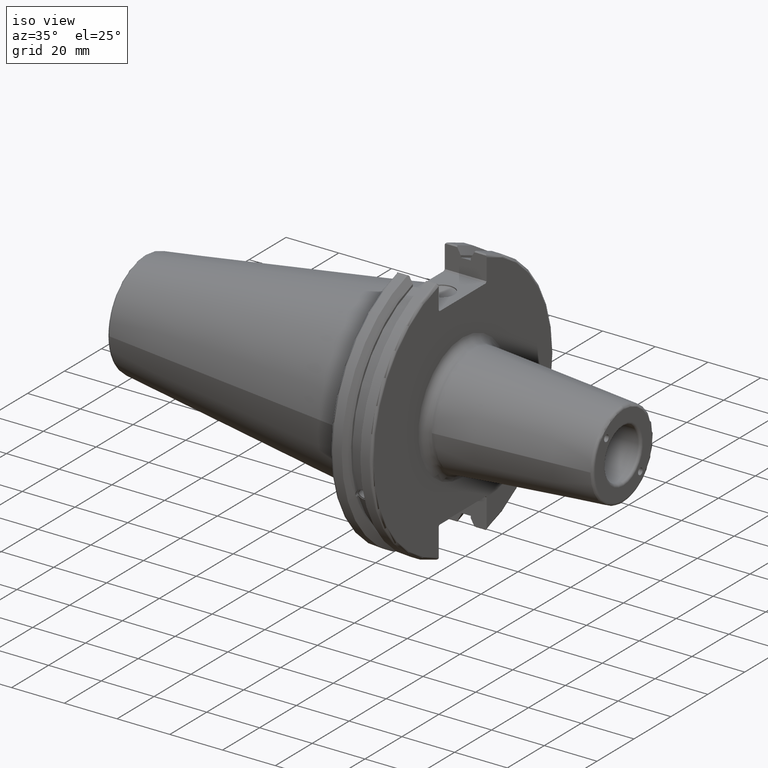
[diagram: clean part render]
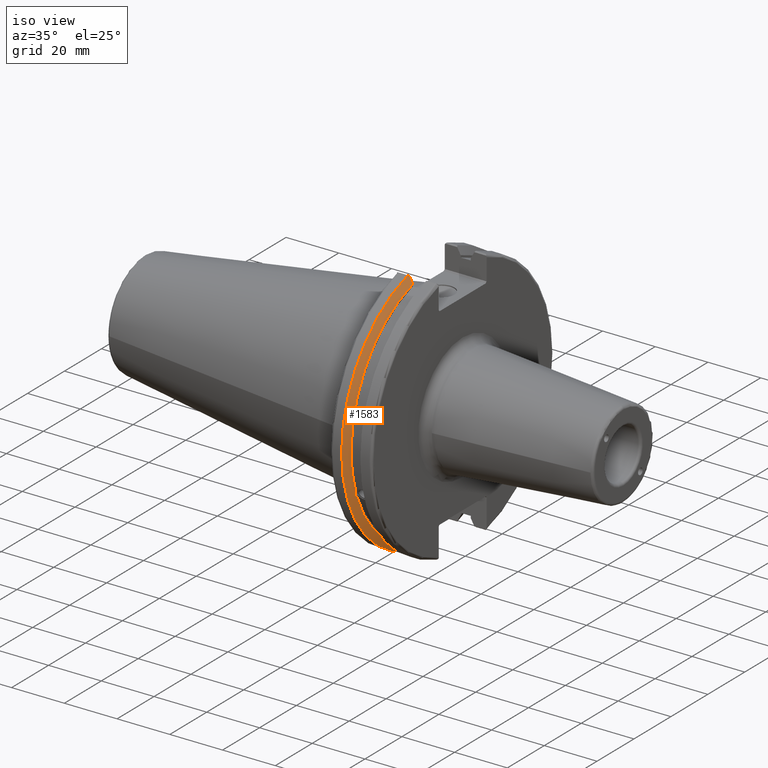
[diagram: same view with one face highlighted and labeled with its STEP entity id]
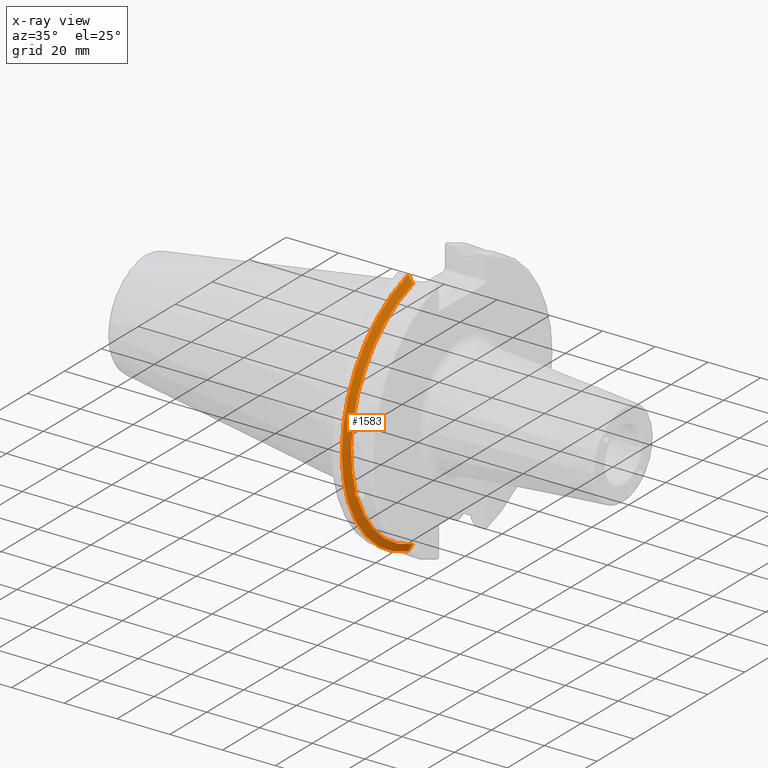
[diagram: x-ray of the same camera — body ghosted, the highlighted face saturated]
A machine part, iso view. The second image highlights one B-rep face of the part: STEP entity #1583.
The next image is the same camera in x-ray: the body ghosted, the highlighted face saturated — about 0% of this face is hidden behind the body in this view.
In plain terms, the highlighted conical surface has half-angle 60 deg.
Its self-contained STEP definition (entity closure, byte-faithful):
#25=(
BOUNDED_CURVE()
B_SPLINE_CURVE(2,(#2993,#2994,#2995),.UNSPECIFIED.,.F.,.F.)
B_SPLINE_CURVE_WITH_KNOTS((3,3),(0.,0.275823910674601),.UNSPECIFIED.)
CURVE()
GEOMETRIC_REPRESENTATION_ITEM()
RATIONAL_B_SPLINE_CURVE((1.,1.00038235573593,1.00012873636487))
REPRESENTATION_ITEM('')
);
#26=(
BOUNDED_CURVE()
B_SPLINE_CURVE(2,(#3005,#3006,#3007),.UNSPECIFIED.,.F.,.F.)
B_SPLINE_CURVE_WITH_KNOTS((3,3),(0.0558332664507492,0.331657177124507),
 .UNSPECIFIED.)
CURVE()
GEOMETRIC_REPRESENTATION_ITEM()
RATIONAL_B_SPLINE_CURVE((1.00012873636807,1.00038235574544,1.))
REPRESENTATION_ITEM('')
);
#27=(
BOUNDED_CURVE()
B_SPLINE_CURVE(2,(#3040,#3041,#3042),.UNSPECIFIED.,.F.,.F.)
B_SPLINE_CURVE_WITH_KNOTS((3,3),(0.,0.0648240472897372),.UNSPECIFIED.)
CURVE()
GEOMETRIC_REPRESENTATION_ITEM()
RATIONAL_B_SPLINE_CURVE((1.,1.00011477674836,1.00019140645948))
REPRESENTATION_ITEM('')
);
#28=(
BOUNDED_CURVE()
B_SPLINE_CURVE(2,(#3048,#3049,#3050),.UNSPECIFIED.,.F.,.F.)
B_SPLINE_CURVE_WITH_KNOTS((3,3),(0.325260944932348,0.390084992222201),
 .UNSPECIFIED.)
CURVE()
GEOMETRIC_REPRESENTATION_ITEM()
RATIONAL_B_SPLINE_CURVE((1.00019140645916,1.00011477674817,1.))
REPRESENTATION_ITEM('')
);
#41=B_SPLINE_CURVE_WITH_KNOTS('',3,(#2529,#2530,#2531,#2532,#2533,#2534,
#2535,#2536,#2537,#2538,#2539,#2540,#2541,#2542),.UNSPECIFIED.,.F.,.F.,
(4,2,2,2,2,2,4),(0.426712868358719,0.441644498666906,0.48031331322313,0.518982127779354,
0.557650942335578,0.596319756891801,0.611251387199988),.UNSPECIFIED.);
#81=CONICAL_SURFACE('',#1775,47.8172386482472,1.0471975511966);
#238=FACE_OUTER_BOUND('',#350,.T.);
#350=EDGE_LOOP('',(#1448,#1449,#1450,#1451,#1452,#1453,#1454,#1455));
#389=CIRCLE('',#1678,46.4219772964944);
#413=CIRCLE('',#1729,49.2125);
#429=CIRCLE('',#1776,46.4219772964944);
#672=VERTEX_POINT('',#2526);
#673=VERTEX_POINT('',#2528);
#690=VERTEX_POINT('',#2619);
#750=VERTEX_POINT('',#2990);
#751=VERTEX_POINT('',#2992);
#754=VERTEX_POINT('',#3004);
#758=VERTEX_POINT('',#3038);
#759=VERTEX_POINT('',#3044);
#841=EDGE_CURVE('',#673,#672,#41,.T.);
#864=EDGE_CURVE('',#673,#690,#389,.T.);
#946=EDGE_CURVE('',#751,#750,#25,.T.);
#952=EDGE_CURVE('',#754,#690,#26,.T.);
#960=EDGE_CURVE('',#758,#750,#27,.T.);
#962=EDGE_CURVE('',#758,#759,#413,.T.);
#963=EDGE_CURVE('',#754,#759,#28,.T.);
#1005=EDGE_CURVE('',#751,#672,#429,.T.);
#1448=ORIENTED_EDGE('',*,*,#841,.T.);
#1449=ORIENTED_EDGE('',*,*,#1005,.F.);
#1450=ORIENTED_EDGE('',*,*,#946,.T.);
#1451=ORIENTED_EDGE('',*,*,#960,.F.);
#1452=ORIENTED_EDGE('',*,*,#962,.T.);
#1453=ORIENTED_EDGE('',*,*,#963,.F.);
#1454=ORIENTED_EDGE('',*,*,#952,.T.);
#1455=ORIENTED_EDGE('',*,*,#864,.F.);
#1583=ADVANCED_FACE('',(#238),#81,.T.);
#1678=AXIS2_PLACEMENT_3D('',#2620,#1951,#1952);
#1729=AXIS2_PLACEMENT_3D('',#3046,#2095,#2096);
#1775=AXIS2_PLACEMENT_3D('',#3162,#2208,#2209);
#1776=AXIS2_PLACEMENT_3D('',#3163,#2210,#2211);
#1951=DIRECTION('center_axis',(1.,0.,0.));
#1952=DIRECTION('ref_axis',(0.,0.,-1.));
#2095=DIRECTION('center_axis',(1.,0.,0.));
#2096=DIRECTION('ref_axis',(0.,0.,-1.));
#2208=DIRECTION('center_axis',(-1.,0.,0.));
#2209=DIRECTION('ref_axis',(0.,-1.,-1.22464679914735E-16));
#2210=DIRECTION('center_axis',(1.,0.,0.));
#2211=DIRECTION('ref_axis',(0.,0.,-1.));
#2526=CARTESIAN_POINT('',(9.2191,-43.9096390749305,-15.0646464421033));
#2528=CARTESIAN_POINT('',(9.2191,-43.3201030900029,-16.684383248648));
#2529=CARTESIAN_POINT('Ctrl Pts',(9.21910000000001,-43.3201030900029,-16.6843832486479));
#2530=CARTESIAN_POINT('Ctrl Pts',(9.20211843903392,-43.3613106941341,-16.6592273018006));
#2531=CARTESIAN_POINT('Ctrl Pts',(9.18608675403322,-43.4012416983557,-16.6326763251437));
#2532=CARTESIAN_POINT('Ctrl Pts',(9.13238673845037,-43.5391037343221,-16.5325130832406));
#2533=CARTESIAN_POINT('Ctrl Pts',(9.09621610663556,-43.6406982153491,-16.441180795372));
#2534=CARTESIAN_POINT('Ctrl Pts',(9.04690868251975,-43.8110833825827,-16.2291323464527));
#2535=CARTESIAN_POINT('Ctrl Pts',(9.0341,-43.8794096049168,-16.10796730316));
#2536=CARTESIAN_POINT('Ctrl Pts',(9.0341,-43.9675796948952,-15.8657219718732));
#2537=CARTESIAN_POINT('Ctrl Pts',(9.04690868251975,-43.9931221605126,-15.7289849146254));
#2538=CARTESIAN_POINT('Ctrl Pts',(9.09621610663556,-43.9989016655819,-15.4570249042867));
#2539=CARTESIAN_POINT('Ctrl Pts',(9.13238673845037,-43.9797830409458,-15.3217566390708));
#2540=CARTESIAN_POINT('Ctrl Pts',(9.18608675403322,-43.9385582852181,-15.1564111356409));
#2541=CARTESIAN_POINT('Ctrl Pts',(9.20211843903392,-43.9250360001461,-15.1104047527575));
#2542=CARTESIAN_POINT('Ctrl Pts',(9.2191,-43.9096390749305,-15.0646464421033));
#2619=CARTESIAN_POINT('',(9.2191,-12.95,-44.5791147973604));
#2620=CARTESIAN_POINT('Origin',(9.2191,0.,0.));
#2990=CARTESIAN_POINT('',(7.88638960562424,-12.95,46.9780755322918));
#2992=CARTESIAN_POINT('',(9.2191,-12.95,44.5791147973604));
#2993=CARTESIAN_POINT('Ctrl Pts',(9.2191,-12.95,44.5791147973604));
#2994=CARTESIAN_POINT('Ctrl Pts',(8.57020449055857,-12.95,45.7494966802148));
#2995=CARTESIAN_POINT('Ctrl Pts',(7.88638960562424,-12.95,46.9780755322918));
#3004=CARTESIAN_POINT('',(7.88638960562425,-12.95,-46.9780755322918));
#3005=CARTESIAN_POINT('Ctrl Pts',(7.88638960562425,-12.95,-46.9780755322918));
#3006=CARTESIAN_POINT('Ctrl Pts',(8.57020449054166,-12.95,-45.7494966802452));
#3007=CARTESIAN_POINT('Ctrl Pts',(9.2191,-12.95,-44.5791147973604));
#3038=CARTESIAN_POINT('',(7.60799096595127,-13.4317035994433,47.3440544806494));
#3040=CARTESIAN_POINT('Ctrl Pts',(7.60799096595126,-13.4317035994433,47.3440544806494));
#3041=CARTESIAN_POINT('Ctrl Pts',(7.7482689666382,-13.1896660169966,47.1601640966265));
#3042=CARTESIAN_POINT('Ctrl Pts',(7.88638960562424,-12.95,46.9780755322918));
#3044=CARTESIAN_POINT('',(7.60799096595127,-13.4317035994433,-47.3440544806494));
#3046=CARTESIAN_POINT('Origin',(7.60799096595127,0.,0.));
#3048=CARTESIAN_POINT('Ctrl Pts',(7.88638960562425,-12.95,-46.9780755322918));
#3049=CARTESIAN_POINT('Ctrl Pts',(7.74826896663813,-13.1896660169967,-47.1601640966265));
#3050=CARTESIAN_POINT('Ctrl Pts',(7.60799096595127,-13.4317035994434,-47.3440544806494));
#3162=CARTESIAN_POINT('Origin',(8.41354548297563,0.,0.));
#3163=CARTESIAN_POINT('Origin',(9.2191,0.,0.));